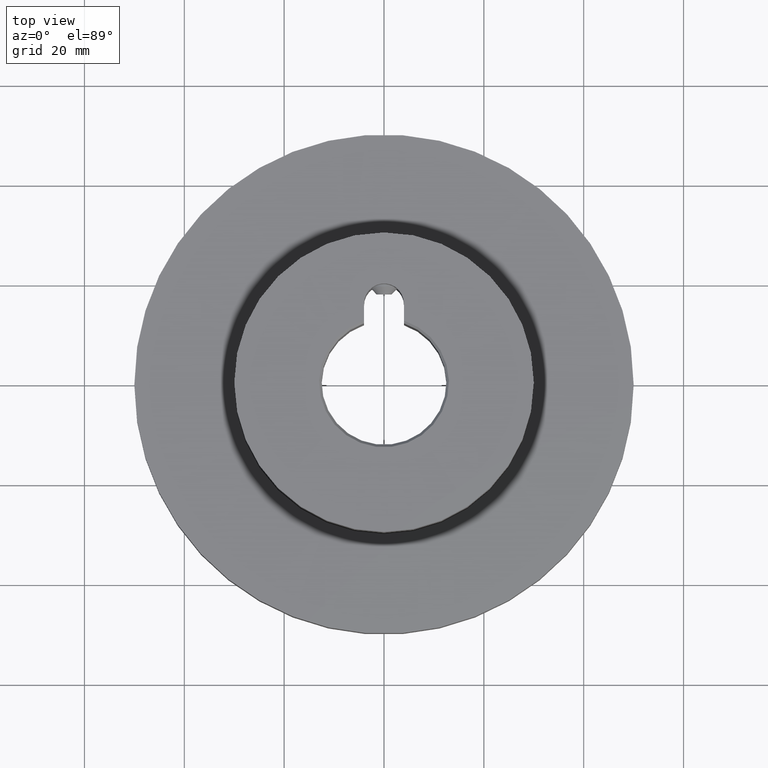
[diagram: clean part render]
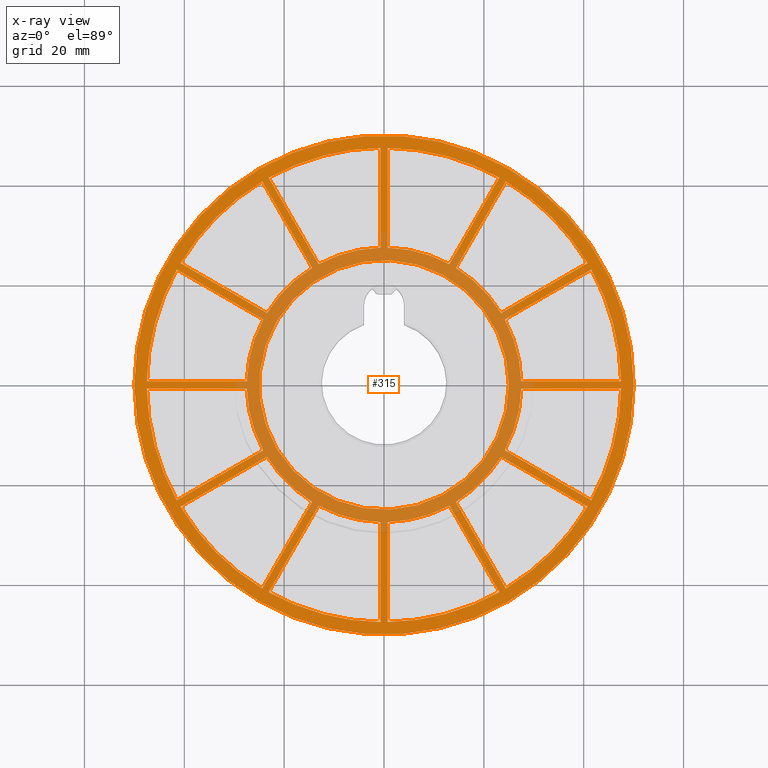
[diagram: x-ray — body ghosted, one internal face saturated and labeled with its STEP entity id]
A machine part, top view, then the same camera in x-ray: the body is ghosted and one INTERNAL B-rep face — a face not visible from any outside direction — is saturated and labeled: STEP entity #315.
In plain terms, the highlighted planar face has unit normal (0, 0, 1).
Its self-contained STEP definition (entity closure, byte-faithful):
#315 = ADVANCED_FACE( '', ( #484, #485, #486, #487, #488, #489, #490, #491, #492, #493, #494, #495, #496, #497 ), #498, .T. );
#484 = FACE_BOUND( '', #696, .T. );
#485 = FACE_BOUND( '', #697, .T. );
#486 = FACE_BOUND( '', #698, .T. );
#487 = FACE_BOUND( '', #699, .T. );
#488 = FACE_BOUND( '', #700, .T. );
#489 = FACE_BOUND( '', #701, .T. );
#490 = FACE_OUTER_BOUND( '', #702, .T. );
#491 = FACE_BOUND( '', #703, .T. );
#492 = FACE_BOUND( '', #704, .T. );
#493 = FACE_BOUND( '', #705, .T. );
#494 = FACE_BOUND( '', #706, .T. );
#495 = FACE_BOUND( '', #707, .T. );
#496 = FACE_BOUND( '', #708, .T. );
#497 = FACE_BOUND( '', #709, .T. );
#498 = PLANE( '', #710 );
#696 = EDGE_LOOP( '', ( #1011, #1012, #1013, #1014 ) );
#697 = EDGE_LOOP( '', ( #1015, #1016, #1017, #1018 ) );
#698 = EDGE_LOOP( '', ( #1019, #1020, #1021, #1022 ) );
#699 = EDGE_LOOP( '', ( #1023, #1024, #1025, #1026 ) );
#700 = EDGE_LOOP( '', ( #1027, #1028, #1029, #1030 ) );
#701 = EDGE_LOOP( '', ( #1031, #1032, #1033, #1034 ) );
#702 = EDGE_LOOP( '', ( #1035 ) );
#703 = EDGE_LOOP( '', ( #1036 ) );
#704 = EDGE_LOOP( '', ( #1037, #1038, #1039, #1040 ) );
#705 = EDGE_LOOP( '', ( #1041, #1042, #1043, #1044 ) );
#706 = EDGE_LOOP( '', ( #1045, #1046, #1047, #1048 ) );
#707 = EDGE_LOOP( '', ( #1049, #1050, #1051, #1052 ) );
#708 = EDGE_LOOP( '', ( #1053, #1054, #1055, #1056 ) );
#709 = EDGE_LOOP( '', ( #1057, #1058, #1059, #1060 ) );
#710 = AXIS2_PLACEMENT_3D( '', #1061, #1062, #1063 );
#1011 = ORIENTED_EDGE( '', *, *, #1590, .T. );
#1012 = ORIENTED_EDGE( '', *, *, #1591, .T. );
#1013 = ORIENTED_EDGE( '', *, *, #1592, .T. );
#1014 = ORIENTED_EDGE( '', *, *, #1593, .T. );
#1015 = ORIENTED_EDGE( '', *, *, #1594, .T. );
#1016 = ORIENTED_EDGE( '', *, *, #1595, .T. );
#1017 = ORIENTED_EDGE( '', *, *, #1596, .T. );
#1018 = ORIENTED_EDGE( '', *, *, #1597, .T. );
#1019 = ORIENTED_EDGE( '', *, *, #1598, .T. );
#1020 = ORIENTED_EDGE( '', *, *, #1599, .T. );
#1021 = ORIENTED_EDGE( '', *, *, #1600, .T. );
#1022 = ORIENTED_EDGE( '', *, *, #1601, .T. );
#1023 = ORIENTED_EDGE( '', *, *, #1602, .T. );
#1024 = ORIENTED_EDGE( '', *, *, #1603, .T. );
#1025 = ORIENTED_EDGE( '', *, *, #1604, .T. );
#1026 = ORIENTED_EDGE( '', *, *, #1605, .T. );
#1027 = ORIENTED_EDGE( '', *, *, #1606, .T. );
#1028 = ORIENTED_EDGE( '', *, *, #1607, .T. );
#1029 = ORIENTED_EDGE( '', *, *, #1608, .T. );
#1030 = ORIENTED_EDGE( '', *, *, #1609, .T. );
#1031 = ORIENTED_EDGE( '', *, *, #1610, .T. );
#1032 = ORIENTED_EDGE( '', *, *, #1611, .T. );
#1033 = ORIENTED_EDGE( '', *, *, #1612, .T. );
#1034 = ORIENTED_EDGE( '', *, *, #1613, .T. );
#1035 = ORIENTED_EDGE( '', *, *, #1584, .T. );
#1036 = ORIENTED_EDGE( '', *, *, #1614, .F. );
#1037 = ORIENTED_EDGE( '', *, *, #1615, .T. );
#1038 = ORIENTED_EDGE( '', *, *, #1616, .T. );
#1039 = ORIENTED_EDGE( '', *, *, #1617, .T. );
#1040 = ORIENTED_EDGE( '', *, *, #1618, .T. );
#1041 = ORIENTED_EDGE( '', *, *, #1619, .T. );
#1042 = ORIENTED_EDGE( '', *, *, #1620, .T. );
#1043 = ORIENTED_EDGE( '', *, *, #1621, .T. );
#1044 = ORIENTED_EDGE( '', *, *, #1622, .T. );
#1045 = ORIENTED_EDGE( '', *, *, #1623, .T. );
#1046 = ORIENTED_EDGE( '', *, *, #1624, .T. );
#1047 = ORIENTED_EDGE( '', *, *, #1625, .T. );
#1048 = ORIENTED_EDGE( '', *, *, #1626, .T. );
#1049 = ORIENTED_EDGE( '', *, *, #1627, .T. );
#1050 = ORIENTED_EDGE( '', *, *, #1628, .T. );
#1051 = ORIENTED_EDGE( '', *, *, #1629, .T. );
#1052 = ORIENTED_EDGE( '', *, *, #1630, .T. );
#1053 = ORIENTED_EDGE( '', *, *, #1631, .T. );
#1054 = ORIENTED_EDGE( '', *, *, #1632, .T. );
#1055 = ORIENTED_EDGE( '', *, *, #1633, .T. );
#1056 = ORIENTED_EDGE( '', *, *, #1634, .T. );
#1057 = ORIENTED_EDGE( '', *, *, #1587, .T. );
#1058 = ORIENTED_EDGE( '', *, *, #1635, .T. );
#1059 = ORIENTED_EDGE( '', *, *, #1636, .T. );
#1060 = ORIENTED_EDGE( '', *, *, #1589, .T. );
#1061 = CARTESIAN_POINT( '', ( 0.000000000000000, 0.000000000000000, 8.00000000000000 ) );
#1062 = DIRECTION( '', ( 0.000000000000000, 0.000000000000000, 1.00000000000000 ) );
#1063 = DIRECTION( '', ( 1.00000000000000, 0.000000000000000, 0.000000000000000 ) );
#1584 = EDGE_CURVE( '', #1861, #1861, #1862, .T. );
#1587 = EDGE_CURVE( '', #1863, #1865, #1867, .T. );
#1589 = EDGE_CURVE( '', #1868, #1863, #1870, .T. );
#1590 = EDGE_CURVE( '', #1871, #1872, #1873, .T. );
#1591 = EDGE_CURVE( '', #1872, #1874, #1875, .F. );
#1592 = EDGE_CURVE( '', #1874, #1876, #1877, .T. );
#1593 = EDGE_CURVE( '', #1876, #1871, #1878, .T. );
#1594 = EDGE_CURVE( '', #1879, #1880, #1881, .T. );
#1595 = EDGE_CURVE( '', #1880, #1882, #1883, .F. );
#1596 = EDGE_CURVE( '', #1882, #1884, #1885, .T. );
#1597 = EDGE_CURVE( '', #1884, #1879, #1886, .T. );
#1598 = EDGE_CURVE( '', #1887, #1888, #1889, .T. );
#1599 = EDGE_CURVE( '', #1888, #1890, #1891, .F. );
#1600 = EDGE_CURVE( '', #1890, #1892, #1893, .T. );
#1601 = EDGE_CURVE( '', #1892, #1887, #1894, .T. );
#1602 = EDGE_CURVE( '', #1895, #1896, #1897, .T. );
#1603 = EDGE_CURVE( '', #1896, #1898, #1899, .F. );
#1604 = EDGE_CURVE( '', #1898, #1900, #1901, .T. );
#1605 = EDGE_CURVE( '', #1900, #1895, #1902, .T. );
#1606 = EDGE_CURVE( '', #1903, #1904, #1905, .T. );
#1607 = EDGE_CURVE( '', #1904, #1906, #1907, .F. );
#1608 = EDGE_CURVE( '', #1906, #1908, #1909, .T. );
#1609 = EDGE_CURVE( '', #1908, #1903, #1910, .T. );
#1610 = EDGE_CURVE( '', #1911, #1912, #1913, .T. );
#1611 = EDGE_CURVE( '', #1912, #1914, #1915, .F. );
#1612 = EDGE_CURVE( '', #1914, #1916, #1917, .T. );
#1613 = EDGE_CURVE( '', #1916, #1911, #1918, .T. );
#1614 = EDGE_CURVE( '', #1919, #1919, #1920, .T. );
#1615 = EDGE_CURVE( '', #1921, #1922, #1923, .T. );
#1616 = EDGE_CURVE( '', #1922, #1924, #1925, .F. );
#1617 = EDGE_CURVE( '', #1924, #1926, #1927, .T. );
#1618 = EDGE_CURVE( '', #1926, #1921, #1928, .T. );
#1619 = EDGE_CURVE( '', #1929, #1930, #1931, .T. );
#1620 = EDGE_CURVE( '', #1930, #1932, #1933, .F. );
#1621 = EDGE_CURVE( '', #1932, #1934, #1935, .T. );
#1622 = EDGE_CURVE( '', #1934, #1929, #1936, .T. );
#1623 = EDGE_CURVE( '', #1937, #1938, #1939, .T. );
#1624 = EDGE_CURVE( '', #1938, #1940, #1941, .F. );
#1625 = EDGE_CURVE( '', #1940, #1942, #1943, .T. );
#1626 = EDGE_CURVE( '', #1942, #1937, #1944, .T. );
#1627 = EDGE_CURVE( '', #1945, #1946, #1947, .T. );
#1628 = EDGE_CURVE( '', #1946, #1948, #1949, .F. );
#1629 = EDGE_CURVE( '', #1948, #1950, #1951, .T. );
#1630 = EDGE_CURVE( '', #1950, #1945, #1952, .T. );
#1631 = EDGE_CURVE( '', #1953, #1954, #1955, .T. );
#1632 = EDGE_CURVE( '', #1954, #1956, #1957, .F. );
#1633 = EDGE_CURVE( '', #1956, #1958, #1959, .T. );
#1634 = EDGE_CURVE( '', #1958, #1953, #1960, .T. );
#1635 = EDGE_CURVE( '', #1865, #1961, #1962, .F. );
#1636 = EDGE_CURVE( '', #1961, #1868, #1963, .T. );
#1861 = VERTEX_POINT( '', #2370 );
#1862 = CIRCLE( '', #2371, 50.0000000000000 );
#1863 = VERTEX_POINT( '', #2372 );
#1865 = VERTEX_POINT( '', #2375 );
#1867 = LINE( '', #2378, #2379 );
#1868 = VERTEX_POINT( '', #2380 );
#1870 = CIRCLE( '', #2383, 27.5000000000000 );
#1871 = VERTEX_POINT( '', #2384 );
#1872 = VERTEX_POINT( '', #2385 );
#1873 = LINE( '', #2386, #2387 );
#1874 = VERTEX_POINT( '', #2388 );
#1875 = CIRCLE( '', #2389, 47.5000000000000 );
#1876 = VERTEX_POINT( '', #2390 );
#1877 = LINE( '', #2391, #2392 );
#1878 = CIRCLE( '', #2393, 27.5000000000000 );
#1879 = VERTEX_POINT( '', #2394 );
#1880 = VERTEX_POINT( '', #2395 );
#1881 = LINE( '', #2396, #2397 );
#1882 = VERTEX_POINT( '', #2398 );
#1883 = CIRCLE( '', #2399, 47.5000000000000 );
#1884 = VERTEX_POINT( '', #2400 );
#1885 = LINE( '', #2401, #2402 );
#1886 = CIRCLE( '', #2403, 27.5000000000000 );
#1887 = VERTEX_POINT( '', #2404 );
#1888 = VERTEX_POINT( '', #2405 );
#1889 = LINE( '', #2406, #2407 );
#1890 = VERTEX_POINT( '', #2408 );
#1891 = CIRCLE( '', #2409, 47.5000000000000 );
#1892 = VERTEX_POINT( '', #2410 );
#1893 = LINE( '', #2411, #2412 );
#1894 = CIRCLE( '', #2413, 27.5000000000000 );
#1895 = VERTEX_POINT( '', #2414 );
#1896 = VERTEX_POINT( '', #2415 );
#1897 = LINE( '', #2416, #2417 );
#1898 = VERTEX_POINT( '', #2418 );
#1899 = CIRCLE( '', #2419, 47.5000000000000 );
#1900 = VERTEX_POINT( '', #2420 );
#1901 = LINE( '', #2421, #2422 );
#1902 = CIRCLE( '', #2423, 27.5000000000000 );
#1903 = VERTEX_POINT( '', #2424 );
#1904 = VERTEX_POINT( '', #2425 );
#1905 = LINE( '', #2426, #2427 );
#1906 = VERTEX_POINT( '', #2428 );
#1907 = CIRCLE( '', #2429, 47.5000000000000 );
#1908 = VERTEX_POINT( '', #2430 );
#1909 = LINE( '', #2431, #2432 );
#1910 = CIRCLE( '', #2433, 27.5000000000000 );
#1911 = VERTEX_POINT( '', #2434 );
#1912 = VERTEX_POINT( '', #2435 );
#1913 = LINE( '', #2436, #2437 );
#1914 = VERTEX_POINT( '', #2438 );
#1915 = CIRCLE( '', #2439, 47.5000000000000 );
#1916 = VERTEX_POINT( '', #2440 );
#1917 = LINE( '', #2441, #2442 );
#1918 = CIRCLE( '', #2443, 27.5000000000000 );
#1919 = VERTEX_POINT( '', #2444 );
#1920 = CIRCLE( '', #2445, 25.0000000000000 );
#1921 = VERTEX_POINT( '', #2446 );
#1922 = VERTEX_POINT( '', #2447 );
#1923 = LINE( '', #2448, #2449 );
#1924 = VERTEX_POINT( '', #2450 );
#1925 = CIRCLE( '', #2451, 47.5000000000000 );
#1926 = VERTEX_POINT( '', #2452 );
#1927 = LINE( '', #2453, #2454 );
#1928 = CIRCLE( '', #2455, 27.5000000000000 );
#1929 = VERTEX_POINT( '', #2456 );
#1930 = VERTEX_POINT( '', #2457 );
#1931 = LINE( '', #2458, #2459 );
#1932 = VERTEX_POINT( '', #2460 );
#1933 = CIRCLE( '', #2461, 47.5000000000000 );
#1934 = VERTEX_POINT( '', #2462 );
#1935 = LINE( '', #2463, #2464 );
#1936 = CIRCLE( '', #2465, 27.5000000000000 );
#1937 = VERTEX_POINT( '', #2466 );
#1938 = VERTEX_POINT( '', #2467 );
#1939 = LINE( '', #2468, #2469 );
#1940 = VERTEX_POINT( '', #2470 );
#1941 = CIRCLE( '', #2471, 47.5000000000000 );
#1942 = VERTEX_POINT( '', #2472 );
#1943 = LINE( '', #2473, #2474 );
#1944 = CIRCLE( '', #2475, 27.5000000000000 );
#1945 = VERTEX_POINT( '', #2476 );
#1946 = VERTEX_POINT( '', #2477 );
#1947 = LINE( '', #2478, #2479 );
#1948 = VERTEX_POINT( '', #2480 );
#1949 = CIRCLE( '', #2481, 47.5000000000000 );
#1950 = VERTEX_POINT( '', #2482 );
#1951 = LINE( '', #2483, #2484 );
#1952 = CIRCLE( '', #2485, 27.5000000000000 );
#1953 = VERTEX_POINT( '', #2486 );
#1954 = VERTEX_POINT( '', #2487 );
#1955 = LINE( '', #2488, #2489 );
#1956 = VERTEX_POINT( '', #2490 );
#1957 = CIRCLE( '', #2491, 47.5000000000000 );
#1958 = VERTEX_POINT( '', #2492 );
#1959 = LINE( '', #2493, #2494 );
#1960 = CIRCLE( '', #2495, 27.5000000000000 );
#1961 = VERTEX_POINT( '', #2496 );
#1962 = CIRCLE( '', #2497, 47.5000000000000 );
#1963 = LINE( '', #2498, #2499 );
#2370 = CARTESIAN_POINT( '', ( 50.0000000000000, 0.000000000000000, 8.00000000000000 ) );
#2371 = AXIS2_PLACEMENT_3D( '', #2845, #2846, #2847 );
#2372 = CARTESIAN_POINT( '', ( 27.4897708247995, -0.750000000000018, 7.99999999999999 ) );
#2375 = CARTESIAN_POINT( '', ( 47.4940785782818, -0.750000000000038, 8.00000000000000 ) );
#2378 = CARTESIAN_POINT( '', ( -4.99600361081325E-016, -0.750000000000007, 8.00000000000000 ) );
#2379 = VECTOR( '', #2850, 1000.00000000000 );
#2380 = CARTESIAN_POINT( '', ( 24.1818398784887, -13.0953663595614, 7.99999999999999 ) );
#2383 = AXIS2_PLACEMENT_3D( '', #2852, #2853, #2854 );
#2384 = CARTESIAN_POINT( '', ( 23.4318398784887, -14.3944044652381, 7.99999999999999 ) );
#2385 = CARTESIAN_POINT( '', ( 40.7560785781263, -24.3965583419792, 8.00000000000000 ) );
#2386 = CARTESIAN_POINT( '', ( -0.375000000000004, -0.649519052838335, 8.00000000000000 ) );
#2387 = VECTOR( '', #2855, 1000.00000000000 );
#2388 = CARTESIAN_POINT( '', ( 24.3965583419792, -40.7560785781263, 7.99999999999999 ) );
#2389 = AXIS2_PLACEMENT_3D( '', #2856, #2857, #2858 );
#2390 = CARTESIAN_POINT( '', ( 14.3944044652381, -23.4318398784887, 7.99999999999999 ) );
#2391 = CARTESIAN_POINT( '', ( 0.649519052838330, 0.375000000000000, 8.00000000000000 ) );
#2392 = VECTOR( '', #2859, 1000.00000000000 );
#2393 = AXIS2_PLACEMENT_3D( '', #2860, #2861, #2862 );
#2394 = CARTESIAN_POINT( '', ( -0.750000000000018, -27.4897708247995, 7.99999999999999 ) );
#2395 = CARTESIAN_POINT( '', ( -0.750000000000038, -47.4940785782818, 8.00000000000000 ) );
#2396 = CARTESIAN_POINT( '', ( -0.750000000000007, 4.99600361081325E-016, 8.00000000000000 ) );
#2397 = VECTOR( '', #2863, 1000.00000000000 );
#2398 = CARTESIAN_POINT( '', ( -23.0975202363026, -41.5060785781263, 7.99999999999999 ) );
#2399 = AXIS2_PLACEMENT_3D( '', #2864, #2865, #2866 );
#2400 = CARTESIAN_POINT( '', ( -13.0953663595614, -24.1818398784887, 7.99999999999999 ) );
#2401 = CARTESIAN_POINT( '', ( 0.649519052838329, -0.375000000000001, 8.00000000000000 ) );
#2402 = VECTOR( '', #2867, 1000.00000000000 );
#2403 = AXIS2_PLACEMENT_3D( '', #2868, #2869, #2870 );
#2404 = CARTESIAN_POINT( '', ( -24.1818398784887, -13.0953663595614, 7.99999999999999 ) );
#2405 = CARTESIAN_POINT( '', ( -41.5060785781263, -23.0975202363025, 8.00000000000000 ) );
#2406 = CARTESIAN_POINT( '', ( -0.375000000000004, 0.649519052838336, 8.00000000000000 ) );
#2407 = VECTOR( '', #2871, 1000.00000000000 );
#2408 = CARTESIAN_POINT( '', ( -47.4940785782818, -0.749999999999994, 7.99999999999999 ) );
#2409 = AXIS2_PLACEMENT_3D( '', #2872, #2873, #2874 );
#2410 = CARTESIAN_POINT( '', ( -27.4897708247995, -0.749999999999997, 7.99999999999999 ) );
#2411 = CARTESIAN_POINT( '', ( -9.18485099360515E-017, -0.750000000000000, 8.00000000000000 ) );
#2412 = VECTOR( '', #2875, 1000.00000000000 );
#2413 = AXIS2_PLACEMENT_3D( '', #2876, #2877, #2878 );
#2414 = CARTESIAN_POINT( '', ( -23.4318398784887, 14.3944044652381, 7.99999999999999 ) );
#2415 = CARTESIAN_POINT( '', ( -40.7560785781263, 24.3965583419792, 8.00000000000000 ) );
#2416 = CARTESIAN_POINT( '', ( 0.375000000000004, 0.649519052838336, 8.00000000000000 ) );
#2417 = VECTOR( '', #2879, 1000.00000000000 );
#2418 = CARTESIAN_POINT( '', ( -24.3965583419792, 40.7560785781263, 7.99999999999999 ) );
#2419 = AXIS2_PLACEMENT_3D( '', #2880, #2881, #2882 );
#2420 = CARTESIAN_POINT( '', ( -14.3944044652381, 23.4318398784887, 7.99999999999999 ) );
#2421 = CARTESIAN_POINT( '', ( -0.649519052838330, -0.375000000000000, 8.00000000000000 ) );
#2422 = VECTOR( '', #2883, 1000.00000000000 );
#2423 = AXIS2_PLACEMENT_3D( '', #2884, #2885, #2886 );
#2424 = CARTESIAN_POINT( '', ( 0.750000000000008, 27.4897708247995, 7.99999999999999 ) );
#2425 = CARTESIAN_POINT( '', ( 0.750000000000022, 47.4940785782818, 8.00000000000000 ) );
#2426 = CARTESIAN_POINT( '', ( 0.750000000000009, -2.08166817117219E-016, 8.00000000000000 ) );
#2427 = VECTOR( '', #2887, 1000.00000000000 );
#2428 = CARTESIAN_POINT( '', ( 23.0975202363026, 41.5060785781263, 7.99999999999999 ) );
#2429 = AXIS2_PLACEMENT_3D( '', #2888, #2889, #2890 );
#2430 = CARTESIAN_POINT( '', ( 13.0953663595614, 24.1818398784887, 7.99999999999999 ) );
#2431 = CARTESIAN_POINT( '', ( -0.649519052838330, 0.375000000000000, 8.00000000000000 ) );
#2432 = VECTOR( '', #2891, 1000.00000000000 );
#2433 = AXIS2_PLACEMENT_3D( '', #2892, #2893, #2894 );
#2434 = CARTESIAN_POINT( '', ( 24.1818398784887, 13.0953663595614, 7.99999999999999 ) );
#2435 = CARTESIAN_POINT( '', ( 41.5060785781263, 23.0975202363026, 8.00000000000000 ) );
#2436 = CARTESIAN_POINT( '', ( 0.375000000000004, -0.649519052838336, 8.00000000000000 ) );
#2437 = VECTOR( '', #2895, 1000.00000000000 );
#2438 = CARTESIAN_POINT( '', ( 47.4940785782818, 0.750000000000000, 7.99999999999999 ) );
#2439 = AXIS2_PLACEMENT_3D( '', #2896, #2897, #2898 );
#2440 = CARTESIAN_POINT( '', ( 27.4897708247995, 0.750000000000000, 7.99999999999999 ) );
#2441 = CARTESIAN_POINT( '', ( 0.000000000000000, 0.750000000000000, 8.00000000000000 ) );
#2442 = VECTOR( '', #2899, 1000.00000000000 );
#2443 = AXIS2_PLACEMENT_3D( '', #2900, #2901, #2902 );
#2444 = CARTESIAN_POINT( '', ( 25.0000000000000, 0.000000000000000, 8.00000000000000 ) );
#2445 = AXIS2_PLACEMENT_3D( '', #2903, #2904, #2905 );
#2446 = CARTESIAN_POINT( '', ( 14.3944044652381, 23.4318398784887, 7.99999999999999 ) );
#2447 = CARTESIAN_POINT( '', ( 24.3965583419792, 40.7560785781263, 8.00000000000000 ) );
#2448 = CARTESIAN_POINT( '', ( 0.649519052838336, -0.375000000000004, 8.00000000000000 ) );
#2449 = VECTOR( '', #2906, 1000.00000000000 );
#2450 = CARTESIAN_POINT( '', ( 40.7560785781263, 24.3965583419792, 7.99999999999999 ) );
#2451 = AXIS2_PLACEMENT_3D( '', #2907, #2908, #2909 );
#2452 = CARTESIAN_POINT( '', ( 23.4318398784887, 14.3944044652381, 7.99999999999999 ) );
#2453 = CARTESIAN_POINT( '', ( -0.375000000000000, 0.649519052838330, 8.00000000000000 ) );
#2454 = VECTOR( '', #2910, 1000.00000000000 );
#2455 = AXIS2_PLACEMENT_3D( '', #2911, #2912, #2913 );
#2456 = CARTESIAN_POINT( '', ( -13.0953663595614, 24.1818398784887, 7.99999999999999 ) );
#2457 = CARTESIAN_POINT( '', ( -23.0975202363025, 41.5060785781263, 8.00000000000000 ) );
#2458 = CARTESIAN_POINT( '', ( 0.649519052838337, 0.375000000000005, 8.00000000000000 ) );
#2459 = VECTOR( '', #2914, 1000.00000000000 );
#2460 = CARTESIAN_POINT( '', ( -0.749999999999997, 47.4940785782818, 7.99999999999999 ) );
#2461 = AXIS2_PLACEMENT_3D( '', #2915, #2916, #2917 );
#2462 = CARTESIAN_POINT( '', ( -0.749999999999998, 27.4897708247995, 7.99999999999999 ) );
#2463 = CARTESIAN_POINT( '', ( -0.750000000000000, 4.59242549680257E-017, 8.00000000000000 ) );
#2464 = VECTOR( '', #2918, 1000.00000000000 );
#2465 = AXIS2_PLACEMENT_3D( '', #2919, #2920, #2921 );
#2466 = CARTESIAN_POINT( '', ( -27.4897708247995, 0.750000000000001, 7.99999999999999 ) );
#2467 = CARTESIAN_POINT( '', ( -47.4940785782818, 0.750000000000010, 8.00000000000000 ) );
#2468 = CARTESIAN_POINT( '', ( 4.16333634234438E-017, 0.750000000000008, 8.00000000000000 ) );
#2469 = VECTOR( '', #2922, 1000.00000000000 );
#2470 = CARTESIAN_POINT( '', ( -41.5060785781263, 23.0975202363025, 7.99999999999999 ) );
#2471 = AXIS2_PLACEMENT_3D( '', #2923, #2924, #2925 );
#2472 = CARTESIAN_POINT( '', ( -24.1818398784887, 13.0953663595614, 7.99999999999999 ) );
#2473 = CARTESIAN_POINT( '', ( -0.374999999999999, -0.649519052838327, 8.00000000000000 ) );
#2474 = VECTOR( '', #2926, 1000.00000000000 );
#2475 = AXIS2_PLACEMENT_3D( '', #2927, #2928, #2929 );
#2476 = CARTESIAN_POINT( '', ( -14.3944044652381, -23.4318398784887, 7.99999999999999 ) );
#2477 = CARTESIAN_POINT( '', ( -24.3965583419792, -40.7560785781263, 8.00000000000000 ) );
#2478 = CARTESIAN_POINT( '', ( -0.649519052838335, 0.375000000000004, 8.00000000000000 ) );
#2479 = VECTOR( '', #2930, 1000.00000000000 );
#2480 = CARTESIAN_POINT( '', ( -40.7560785781263, -24.3965583419792, 7.99999999999999 ) );
#2481 = AXIS2_PLACEMENT_3D( '', #2931, #2932, #2933 );
#2482 = CARTESIAN_POINT( '', ( -23.4318398784887, -14.3944044652381, 7.99999999999999 ) );
#2483 = CARTESIAN_POINT( '', ( 0.375000000000000, -0.649519052838330, 8.00000000000000 ) );
#2484 = VECTOR( '', #2934, 1000.00000000000 );
#2485 = AXIS2_PLACEMENT_3D( '', #2935, #2936, #2937 );
#2486 = CARTESIAN_POINT( '', ( 13.0953663595614, -24.1818398784887, 7.99999999999999 ) );
#2487 = CARTESIAN_POINT( '', ( 23.0975202363025, -41.5060785781263, 8.00000000000000 ) );
#2488 = CARTESIAN_POINT( '', ( -0.649519052838337, -0.375000000000004, 8.00000000000000 ) );
#2489 = VECTOR( '', #2938, 1000.00000000000 );
#2490 = CARTESIAN_POINT( '', ( 0.749999999999991, -47.4940785782818, 7.99999999999999 ) );
#2491 = AXIS2_PLACEMENT_3D( '', #2939, #2940, #2941 );
#2492 = CARTESIAN_POINT( '', ( 0.749999999999995, -27.4897708247995, 7.99999999999999 ) );
#2493 = CARTESIAN_POINT( '', ( 0.750000000000000, -1.37772764904077E-016, 8.00000000000000 ) );
#2494 = VECTOR( '', #2942, 1000.00000000000 );
#2495 = AXIS2_PLACEMENT_3D( '', #2943, #2944, #2945 );
#2496 = CARTESIAN_POINT( '', ( 41.5060785781263, -23.0975202363026, 7.99999999999999 ) );
#2497 = AXIS2_PLACEMENT_3D( '', #2946, #2947, #2948 );
#2498 = CARTESIAN_POINT( '', ( 0.375000000000001, 0.649519052838329, 8.00000000000000 ) );
#2499 = VECTOR( '', #2949, 1000.00000000000 );
#2845 = CARTESIAN_POINT( '', ( 0.000000000000000, 0.000000000000000, 8.00000000000000 ) );
#2846 = DIRECTION( '', ( 0.000000000000000, 0.000000000000000, 1.00000000000000 ) );
#2847 = DIRECTION( '', ( 1.00000000000000, 0.000000000000000, 0.000000000000000 ) );
#2850 = DIRECTION( '', ( 1.00000000000000, -6.66133814775094E-016, 0.000000000000000 ) );
#2852 = CARTESIAN_POINT( '', ( 0.000000000000000, 0.000000000000000, 7.99999999999999 ) );
#2853 = DIRECTION( '', ( 0.000000000000000, 0.000000000000000, 1.00000000000000 ) );
#2854 = DIRECTION( '', ( 1.00000000000000, 0.000000000000000, -0.000000000000000 ) );
#2855 = DIRECTION( '', ( 0.866025403784439, -0.500000000000000, 0.000000000000000 ) );
#2856 = CARTESIAN_POINT( '', ( 0.000000000000000, 0.000000000000000, 7.99999999999999 ) );
#2857 = DIRECTION( '', ( 0.000000000000000, 0.000000000000000, 1.00000000000000 ) );
#2858 = DIRECTION( '', ( 1.00000000000000, 0.000000000000000, -0.000000000000000 ) );
#2859 = DIRECTION( '', ( -0.500000000000000, 0.866025403784439, 0.000000000000000 ) );
#2860 = CARTESIAN_POINT( '', ( 0.000000000000000, 0.000000000000000, 7.99999999999999 ) );
#2861 = DIRECTION( '', ( 0.000000000000000, 0.000000000000000, 1.00000000000000 ) );
#2862 = DIRECTION( '', ( 1.00000000000000, 0.000000000000000, -0.000000000000000 ) );
#2863 = DIRECTION( '', ( -6.66133814775094E-016, -1.00000000000000, 0.000000000000000 ) );
#2864 = CARTESIAN_POINT( '', ( 0.000000000000000, 0.000000000000000, 7.99999999999999 ) );
#2865 = DIRECTION( '', ( 0.000000000000000, 0.000000000000000, 1.00000000000000 ) );
#2866 = DIRECTION( '', ( 1.00000000000000, 0.000000000000000, -0.000000000000000 ) );
#2867 = DIRECTION( '', ( 0.500000000000000, 0.866025403784438, -0.000000000000000 ) );
#2868 = CARTESIAN_POINT( '', ( 0.000000000000000, 0.000000000000000, 7.99999999999999 ) );
#2869 = DIRECTION( '', ( 0.000000000000000, 0.000000000000000, 1.00000000000000 ) );
#2870 = DIRECTION( '', ( 1.00000000000000, 0.000000000000000, -0.000000000000000 ) );
#2871 = DIRECTION( '', ( -0.866025403784439, -0.500000000000000, 0.000000000000000 ) );
#2872 = CARTESIAN_POINT( '', ( 0.000000000000000, 0.000000000000000, 7.99999999999999 ) );
#2873 = DIRECTION( '', ( 0.000000000000000, 0.000000000000000, 1.00000000000000 ) );
#2874 = DIRECTION( '', ( 1.00000000000000, 0.000000000000000, -0.000000000000000 ) );
#2875 = DIRECTION( '', ( 1.00000000000000, -1.22464679914735E-016, 0.000000000000000 ) );
#2876 = CARTESIAN_POINT( '', ( 0.000000000000000, 0.000000000000000, 7.99999999999999 ) );
#2877 = DIRECTION( '', ( 0.000000000000000, 0.000000000000000, 1.00000000000000 ) );
#2878 = DIRECTION( '', ( 1.00000000000000, 0.000000000000000, -0.000000000000000 ) );
#2879 = DIRECTION( '', ( -0.866025403784438, 0.500000000000000, 0.000000000000000 ) );
#2880 = CARTESIAN_POINT( '', ( 0.000000000000000, 0.000000000000000, 7.99999999999999 ) );
#2881 = DIRECTION( '', ( 0.000000000000000, 0.000000000000000, 1.00000000000000 ) );
#2882 = DIRECTION( '', ( 1.00000000000000, 0.000000000000000, -0.000000000000000 ) );
#2883 = DIRECTION( '', ( 0.500000000000000, -0.866025403784439, 0.000000000000000 ) );
#2884 = CARTESIAN_POINT( '', ( 0.000000000000000, 0.000000000000000, 7.99999999999999 ) );
#2885 = DIRECTION( '', ( 0.000000000000000, 0.000000000000000, 1.00000000000000 ) );
#2886 = DIRECTION( '', ( 1.00000000000000, 0.000000000000000, -0.000000000000000 ) );
#2887 = DIRECTION( '', ( 2.77555756156289E-016, 1.00000000000000, -0.000000000000000 ) );
#2888 = CARTESIAN_POINT( '', ( 0.000000000000000, 0.000000000000000, 7.99999999999999 ) );
#2889 = DIRECTION( '', ( 0.000000000000000, 0.000000000000000, 1.00000000000000 ) );
#2890 = DIRECTION( '', ( 1.00000000000000, 0.000000000000000, -0.000000000000000 ) );
#2891 = DIRECTION( '', ( -0.500000000000000, -0.866025403784439, 0.000000000000000 ) );
#2892 = CARTESIAN_POINT( '', ( 0.000000000000000, 0.000000000000000, 7.99999999999999 ) );
#2893 = DIRECTION( '', ( 0.000000000000000, 0.000000000000000, 1.00000000000000 ) );
#2894 = DIRECTION( '', ( 1.00000000000000, 0.000000000000000, -0.000000000000000 ) );
#2895 = DIRECTION( '', ( 0.866025403784439, 0.500000000000000, -0.000000000000000 ) );
#2896 = CARTESIAN_POINT( '', ( 0.000000000000000, 0.000000000000000, 7.99999999999999 ) );
#2897 = DIRECTION( '', ( 0.000000000000000, 0.000000000000000, 1.00000000000000 ) );
#2898 = DIRECTION( '', ( 1.00000000000000, 0.000000000000000, -0.000000000000000 ) );
#2899 = DIRECTION( '', ( -1.00000000000000, 0.000000000000000, 0.000000000000000 ) );
#2900 = CARTESIAN_POINT( '', ( 0.000000000000000, 0.000000000000000, 7.99999999999999 ) );
#2901 = DIRECTION( '', ( 0.000000000000000, 0.000000000000000, 1.00000000000000 ) );
#2902 = DIRECTION( '', ( 1.00000000000000, 0.000000000000000, -0.000000000000000 ) );
#2903 = CARTESIAN_POINT( '', ( 0.000000000000000, 0.000000000000000, 8.00000000000000 ) );
#2904 = DIRECTION( '', ( 0.000000000000000, 0.000000000000000, 1.00000000000000 ) );
#2905 = DIRECTION( '', ( 1.00000000000000, 0.000000000000000, 0.000000000000000 ) );
#2906 = DIRECTION( '', ( 0.500000000000000, 0.866025403784438, -0.000000000000000 ) );
#2907 = CARTESIAN_POINT( '', ( 0.000000000000000, 0.000000000000000, 7.99999999999999 ) );
#2908 = DIRECTION( '', ( 0.000000000000000, 0.000000000000000, 1.00000000000000 ) );
#2909 = DIRECTION( '', ( 1.00000000000000, 0.000000000000000, -0.000000000000000 ) );
#2910 = DIRECTION( '', ( -0.866025403784439, -0.500000000000000, 0.000000000000000 ) );
#2911 = CARTESIAN_POINT( '', ( 0.000000000000000, 0.000000000000000, 7.99999999999999 ) );
#2912 = DIRECTION( '', ( 0.000000000000000, 0.000000000000000, 1.00000000000000 ) );
#2913 = DIRECTION( '', ( 1.00000000000000, 0.000000000000000, -0.000000000000000 ) );
#2914 = DIRECTION( '', ( -0.500000000000000, 0.866025403784439, 0.000000000000000 ) );
#2915 = CARTESIAN_POINT( '', ( 0.000000000000000, 0.000000000000000, 7.99999999999999 ) );
#2916 = DIRECTION( '', ( 0.000000000000000, 0.000000000000000, 1.00000000000000 ) );
#2917 = DIRECTION( '', ( 1.00000000000000, 0.000000000000000, -0.000000000000000 ) );
#2918 = DIRECTION( '', ( -6.12323399573677E-017, -1.00000000000000, 0.000000000000000 ) );
#2919 = CARTESIAN_POINT( '', ( 0.000000000000000, 0.000000000000000, 7.99999999999999 ) );
#2920 = DIRECTION( '', ( 0.000000000000000, 0.000000000000000, 1.00000000000000 ) );
#2921 = DIRECTION( '', ( 1.00000000000000, 0.000000000000000, -0.000000000000000 ) );
#2922 = DIRECTION( '', ( -1.00000000000000, 5.55111512312578E-017, 0.000000000000000 ) );
#2923 = CARTESIAN_POINT( '', ( 0.000000000000000, 0.000000000000000, 7.99999999999999 ) );
#2924 = DIRECTION( '', ( 0.000000000000000, 0.000000000000000, 1.00000000000000 ) );
#2925 = DIRECTION( '', ( 1.00000000000000, 0.000000000000000, -0.000000000000000 ) );
#2926 = DIRECTION( '', ( 0.866025403784439, -0.500000000000000, 0.000000000000000 ) );
#2927 = CARTESIAN_POINT( '', ( 0.000000000000000, 0.000000000000000, 7.99999999999999 ) );
#2928 = DIRECTION( '', ( 0.000000000000000, 0.000000000000000, 1.00000000000000 ) );
#2929 = DIRECTION( '', ( 1.00000000000000, 0.000000000000000, -0.000000000000000 ) );
#2930 = DIRECTION( '', ( -0.500000000000000, -0.866025403784439, 0.000000000000000 ) );
#2931 = CARTESIAN_POINT( '', ( 0.000000000000000, 0.000000000000000, 7.99999999999999 ) );
#2932 = DIRECTION( '', ( 0.000000000000000, 0.000000000000000, 1.00000000000000 ) );
#2933 = DIRECTION( '', ( 1.00000000000000, 0.000000000000000, -0.000000000000000 ) );
#2934 = DIRECTION( '', ( 0.866025403784439, 0.500000000000000, -0.000000000000000 ) );
#2935 = CARTESIAN_POINT( '', ( 0.000000000000000, 0.000000000000000, 7.99999999999999 ) );
#2936 = DIRECTION( '', ( 0.000000000000000, 0.000000000000000, 1.00000000000000 ) );
#2937 = DIRECTION( '', ( 1.00000000000000, 0.000000000000000, -0.000000000000000 ) );
#2938 = DIRECTION( '', ( 0.500000000000000, -0.866025403784439, 0.000000000000000 ) );
#2939 = CARTESIAN_POINT( '', ( 0.000000000000000, 0.000000000000000, 7.99999999999999 ) );
#2940 = DIRECTION( '', ( 0.000000000000000, 0.000000000000000, 1.00000000000000 ) );
#2941 = DIRECTION( '', ( 1.00000000000000, 0.000000000000000, -0.000000000000000 ) );
#2942 = DIRECTION( '', ( 1.83697019872103E-016, 1.00000000000000, -0.000000000000000 ) );
#2943 = CARTESIAN_POINT( '', ( 0.000000000000000, 0.000000000000000, 7.99999999999999 ) );
#2944 = DIRECTION( '', ( 0.000000000000000, 0.000000000000000, 1.00000000000000 ) );
#2945 = DIRECTION( '', ( 1.00000000000000, 0.000000000000000, -0.000000000000000 ) );
#2946 = CARTESIAN_POINT( '', ( 0.000000000000000, 0.000000000000000, 7.99999999999999 ) );
#2947 = DIRECTION( '', ( 0.000000000000000, 0.000000000000000, 1.00000000000000 ) );
#2948 = DIRECTION( '', ( 1.00000000000000, 0.000000000000000, -0.000000000000000 ) );
#2949 = DIRECTION( '', ( -0.866025403784438, 0.500000000000000, 0.000000000000000 ) );